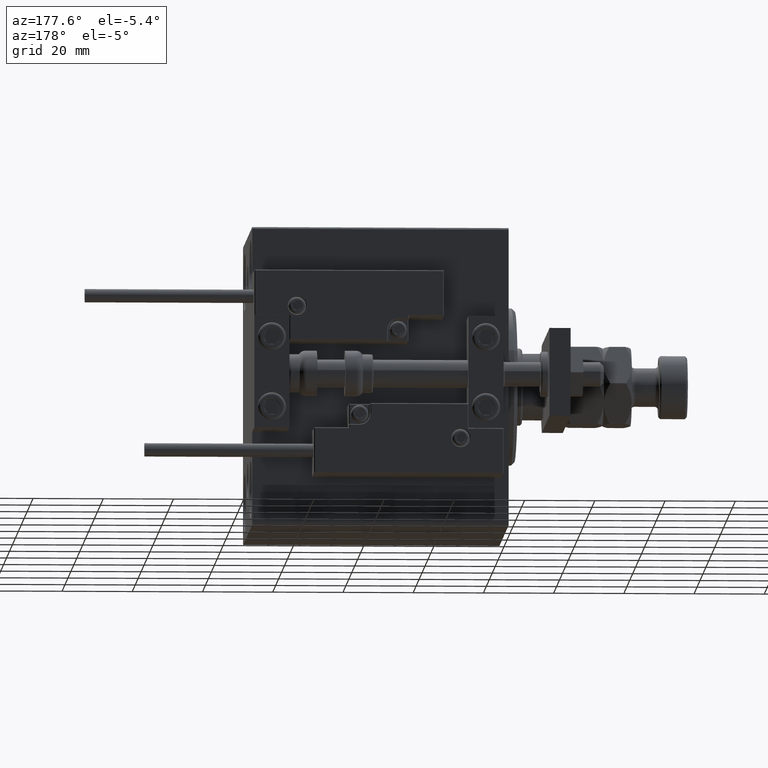
[diagram: clean part render]
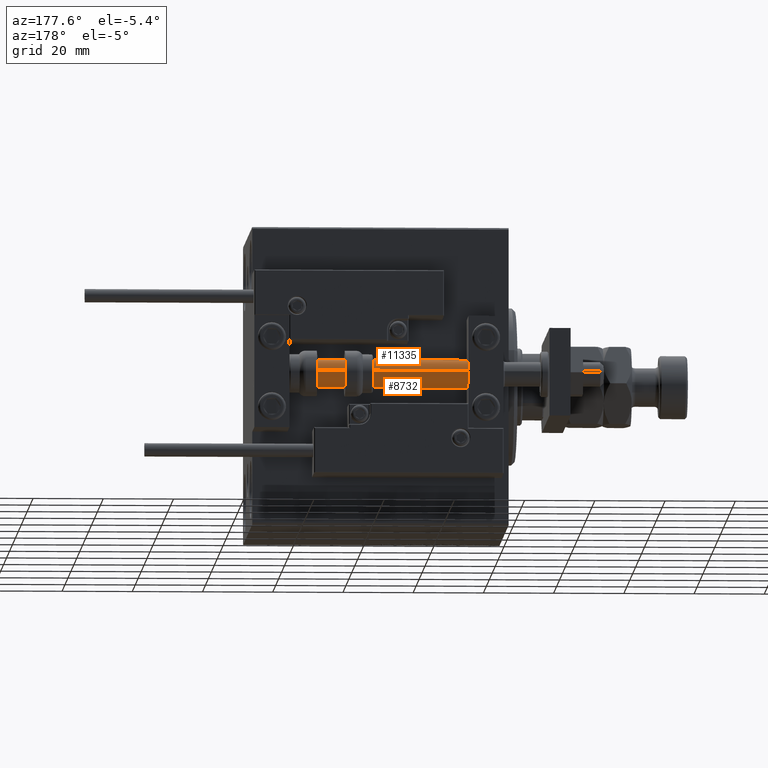
[diagram: same view with one multi-face feature highlighted, each face labeled with its STEP entity id]
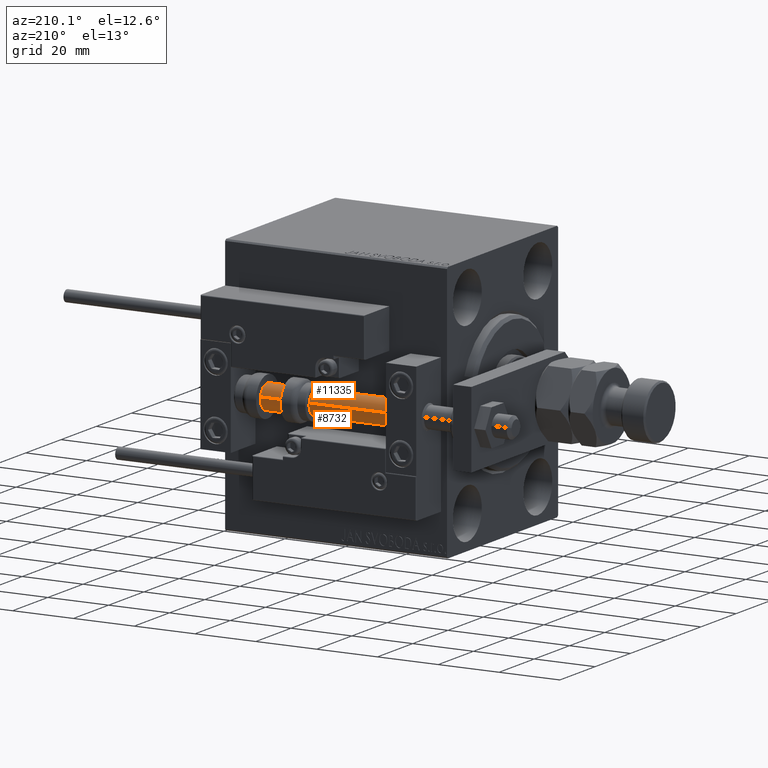
[diagram: same view with one multi-face feature highlighted, each face labeled with its STEP entity id]
A machine part, auxiliary view. The highlighted faces form ONE feature: a constant-radius fillet chain: 2 tangent blend faces with common blend radius 4 mm. The faces share edges in the B-rep.
A second angle (auxiliary view) of the same feature is appended — it is thin or edge-on in the first view.
Their STEP definitions:
[1] entity #11335 (Cylinder):
#3182 = VERTEX_POINT ( 'NONE', #36064 ) ;
#3748 = DIRECTION ( 'NONE',  ( 0.000000000000000000, 0.000000000000000000, 1.000000000000000000 ) ) ;
#5288 = DIRECTION ( 'NONE',  ( 1.000000000000000000, 0.000000000000000000, 0.000000000000000000 ) ) ;
#6581 = CARTESIAN_POINT ( 'NONE',  ( 4.000000000000000000, 4.898587196589412829E-16, 73.00000000000000000 ) ) ;
#7021 = CARTESIAN_POINT ( 'NONE',  ( 0.000000000000000000, 0.000000000000000000, 73.00000000000000000 ) ) ;
#7128 = AXIS2_PLACEMENT_3D ( 'NONE', #7021, #22973, #17762 ) ;
#7148 = EDGE_LOOP ( 'NONE', ( #25414, #29769, #48977, #13112 ) ) ;
#7673 = CARTESIAN_POINT ( 'NONE',  ( 0.000000000000000000, 0.000000000000000000, 73.00000000000000000 ) ) ;
#8913 = CIRCLE ( 'NONE', #16407, 4.000000000000000000 ) ;
#10709 = AXIS2_PLACEMENT_3D ( 'NONE', #7673, #3748, #47446 ) ;
#10948 = FACE_OUTER_BOUND ( 'NONE', #7148, .T. ) ;
#10984 = VERTEX_POINT ( 'NONE', #20987 ) ;
#11335 = ADVANCED_FACE ( 'NONE', ( #10948 ), #42898, .T. ) ;
#11969 = LINE ( 'NONE', #12479, #44326 ) ;
#12479 = CARTESIAN_POINT ( 'NONE',  ( -4.000000000000000000, 0.000000000000000000, 73.00000000000000000 ) ) ;
#13112 = ORIENTED_EDGE ( 'NONE', *, *, #45496, .F. ) ;
#13218 = CIRCLE ( 'NONE', #10709, 4.000000000000000000 ) ;
#14610 = CARTESIAN_POINT ( 'NONE',  ( 4.000000000000000000, 4.898587196589412829E-16, 2.000000000000029310 ) ) ;
#16407 = AXIS2_PLACEMENT_3D ( 'NONE', #41427, #29121, #5288 ) ;
#17762 = DIRECTION ( 'NONE',  ( -1.000000000000000000, 0.000000000000000000, 0.000000000000000000 ) ) ;
#17837 = LINE ( 'NONE', #6581, #41679 ) ;
#19419 = VERTEX_POINT ( 'NONE', #14610 ) ;
#20987 = CARTESIAN_POINT ( 'NONE',  ( 4.000000000000000000, 4.898587196589412829E-16, 73.00000000000000000 ) ) ;
#21172 = EDGE_CURVE ( 'NONE', #10984, #41521, #13218, .T. ) ;
#21446 = EDGE_CURVE ( 'NONE', #10984, #19419, #17837, .T. ) ;
#22973 = DIRECTION ( 'NONE',  ( -0.000000000000000000, -0.000000000000000000, -1.000000000000000000 ) ) ;
#25414 = ORIENTED_EDGE ( 'NONE', *, *, #21172, .F. ) ;
#28510 = CARTESIAN_POINT ( 'NONE',  ( -4.000000000000000000, 0.000000000000000000, 73.00000000000000000 ) ) ;
#29121 = DIRECTION ( 'NONE',  ( -0.000000000000000000, -0.000000000000000000, 1.000000000000000000 ) ) ;
#29769 = ORIENTED_EDGE ( 'NONE', *, *, #21446, .T. ) ;
#29844 = EDGE_CURVE ( 'NONE', #19419, #3182, #8913, .T. ) ;
#35561 = DIRECTION ( 'NONE',  ( -0.000000000000000000, -0.000000000000000000, -1.000000000000000000 ) ) ;
#36064 = CARTESIAN_POINT ( 'NONE',  ( -4.000000000000000000, 0.000000000000000000, 2.000000000000029310 ) ) ;
#41427 = CARTESIAN_POINT ( 'NONE',  ( 0.000000000000000000, 0.000000000000000000, 2.000000000000029310 ) ) ;
#41521 = VERTEX_POINT ( 'NONE', #28510 ) ;
#41679 = VECTOR ( 'NONE', #41694, 1000.000000000000000 ) ;
#41694 = DIRECTION ( 'NONE',  ( -0.000000000000000000, -0.000000000000000000, -1.000000000000000000 ) ) ;
#42898 = CYLINDRICAL_SURFACE ( 'NONE', #7128, 4.000000000000000000 ) ;
#44326 = VECTOR ( 'NONE', #35561, 1000.000000000000000 ) ;
#45496 = EDGE_CURVE ( 'NONE', #41521, #3182, #11969, .T. ) ;
#47446 = DIRECTION ( 'NONE',  ( 1.000000000000000000, 0.000000000000000000, 0.000000000000000000 ) ) ;
#48977 = ORIENTED_EDGE ( 'NONE', *, *, #29844, .T. ) ;
[2] entity #8732 (Cylinder):
#3182 = VERTEX_POINT ( 'NONE', #36064 ) ;
#6581 = CARTESIAN_POINT ( 'NONE',  ( 4.000000000000000000, 4.898587196589412829E-16, 73.00000000000000000 ) ) ;
#8732 = ADVANCED_FACE ( 'NONE', ( #28428 ), #36049, .T. ) ;
#10381 = AXIS2_PLACEMENT_3D ( 'NONE', #32108, #23967, #31338 ) ;
#10984 = VERTEX_POINT ( 'NONE', #20987 ) ;
#11969 = LINE ( 'NONE', #12479, #44326 ) ;
#11983 = ORIENTED_EDGE ( 'NONE', *, *, #21446, .F. ) ;
#12479 = CARTESIAN_POINT ( 'NONE',  ( -4.000000000000000000, 0.000000000000000000, 73.00000000000000000 ) ) ;
#14610 = CARTESIAN_POINT ( 'NONE',  ( 4.000000000000000000, 4.898587196589412829E-16, 2.000000000000029310 ) ) ;
#16211 = DIRECTION ( 'NONE',  ( 1.000000000000000000, 0.000000000000000000, 0.000000000000000000 ) ) ;
#17223 = EDGE_LOOP ( 'NONE', ( #11983, #29971, #26063, #34224 ) ) ;
#17837 = LINE ( 'NONE', #6581, #41679 ) ;
#19419 = VERTEX_POINT ( 'NONE', #14610 ) ;
#20544 = EDGE_CURVE ( 'NONE', #41521, #10984, #39951, .T. ) ;
#20987 = CARTESIAN_POINT ( 'NONE',  ( 4.000000000000000000, 4.898587196589412829E-16, 73.00000000000000000 ) ) ;
#21446 = EDGE_CURVE ( 'NONE', #10984, #19419, #17837, .T. ) ;
#23967 = DIRECTION ( 'NONE',  ( -0.000000000000000000, -0.000000000000000000, -1.000000000000000000 ) ) ;
#26063 = ORIENTED_EDGE ( 'NONE', *, *, #45496, .T. ) ;
#28428 = FACE_OUTER_BOUND ( 'NONE', #17223, .T. ) ;
#28510 = CARTESIAN_POINT ( 'NONE',  ( -4.000000000000000000, 0.000000000000000000, 73.00000000000000000 ) ) ;
#29971 = ORIENTED_EDGE ( 'NONE', *, *, #20544, .F. ) ;
#31173 = DIRECTION ( 'NONE',  ( 1.000000000000000000, 0.000000000000000000, 0.000000000000000000 ) ) ;
#31338 = DIRECTION ( 'NONE',  ( -1.000000000000000000, 0.000000000000000000, 0.000000000000000000 ) ) ;
#31941 = CARTESIAN_POINT ( 'NONE',  ( 0.000000000000000000, 0.000000000000000000, 73.00000000000000000 ) ) ;
#32108 = CARTESIAN_POINT ( 'NONE',  ( 0.000000000000000000, 0.000000000000000000, 73.00000000000000000 ) ) ;
#34224 = ORIENTED_EDGE ( 'NONE', *, *, #45849, .T. ) ;
#34845 = DIRECTION ( 'NONE',  ( -0.000000000000000000, -0.000000000000000000, 1.000000000000000000 ) ) ;
#35561 = DIRECTION ( 'NONE',  ( -0.000000000000000000, -0.000000000000000000, -1.000000000000000000 ) ) ;
#36049 = CYLINDRICAL_SURFACE ( 'NONE', #10381, 4.000000000000000000 ) ;
#36064 = CARTESIAN_POINT ( 'NONE',  ( -4.000000000000000000, 0.000000000000000000, 2.000000000000029310 ) ) ;
#39293 = CARTESIAN_POINT ( 'NONE',  ( 0.000000000000000000, 0.000000000000000000, 2.000000000000029310 ) ) ;
#39951 = CIRCLE ( 'NONE', #46604, 4.000000000000000000 ) ;
#40232 = AXIS2_PLACEMENT_3D ( 'NONE', #39293, #34845, #31173 ) ;
#41521 = VERTEX_POINT ( 'NONE', #28510 ) ;
#41679 = VECTOR ( 'NONE', #41694, 1000.000000000000000 ) ;
#41694 = DIRECTION ( 'NONE',  ( -0.000000000000000000, -0.000000000000000000, -1.000000000000000000 ) ) ;
#44242 = DIRECTION ( 'NONE',  ( 0.000000000000000000, 0.000000000000000000, 1.000000000000000000 ) ) ;
#44326 = VECTOR ( 'NONE', #35561, 1000.000000000000000 ) ;
#45496 = EDGE_CURVE ( 'NONE', #41521, #3182, #11969, .T. ) ;
#45849 = EDGE_CURVE ( 'NONE', #3182, #19419, #46885, .T. ) ;
#46604 = AXIS2_PLACEMENT_3D ( 'NONE', #31941, #44242, #16211 ) ;
#46885 = CIRCLE ( 'NONE', #40232, 4.000000000000000000 ) ;